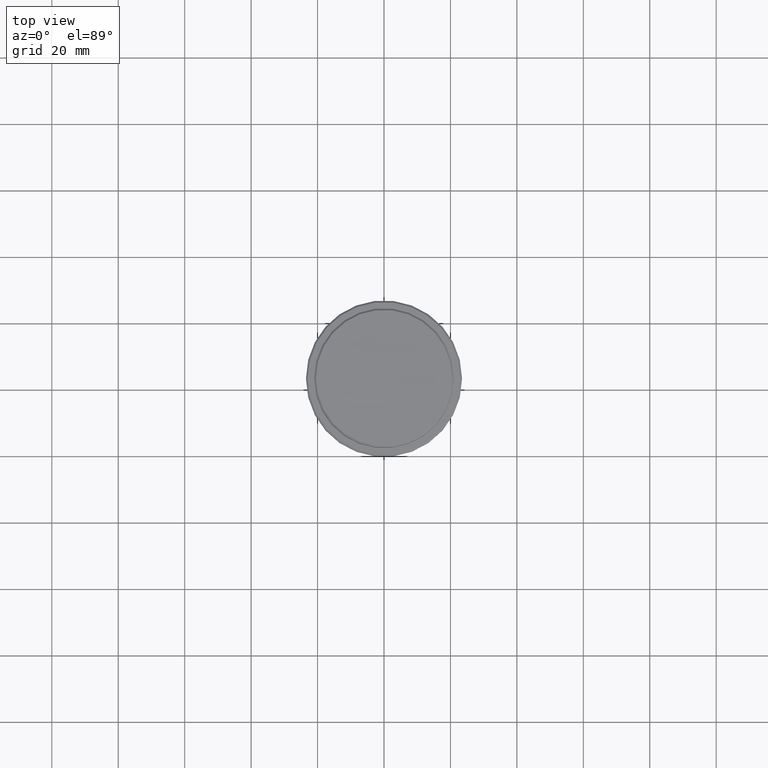
[diagram: clean part render]
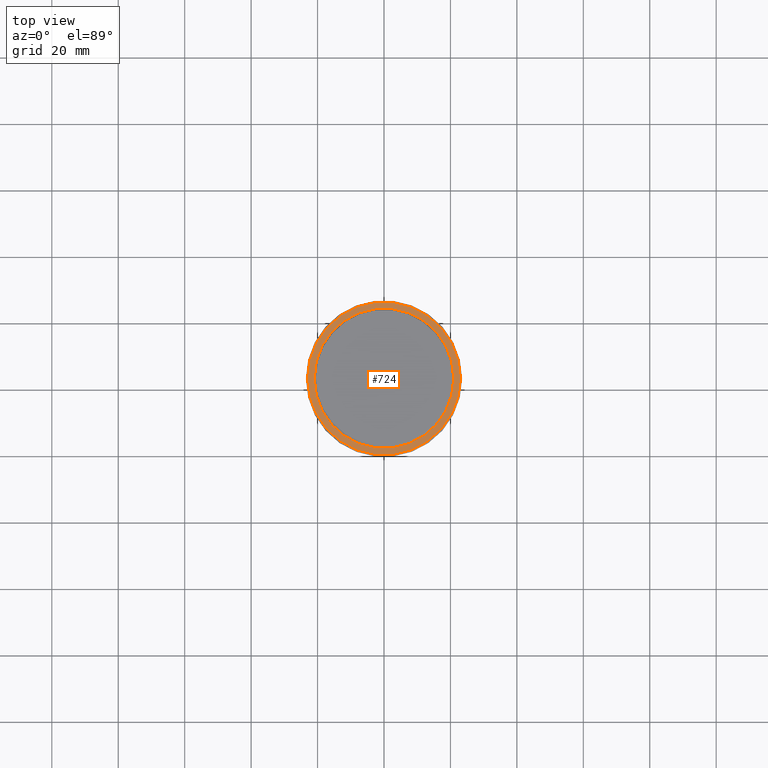
[diagram: same view with one face highlighted and labeled with its STEP entity id]
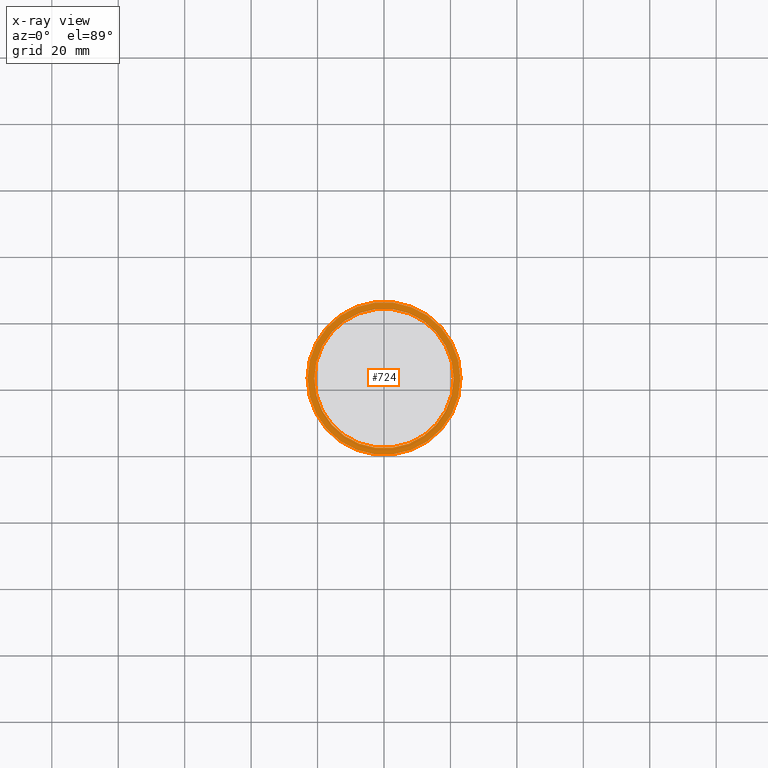
[diagram: x-ray of the same camera — body ghosted, the highlighted face saturated]
A machine part, top view. The second image highlights one B-rep face of the part: STEP entity #724.
The next image is the same camera in x-ray: the body ghosted, the highlighted face saturated — about 0% of this face is hidden behind the body in this view.
In plain terms, the highlighted planar face has unit normal (0, -0, 1).
Its self-contained STEP definition (entity closure, byte-faithful):
#37 = CIRCLE ( 'NONE', #1299, 20.99999999999999289 ) ;
#53 = DIRECTION ( 'NONE',  ( -0.000000000000000000, -0.000000000000000000, 1.000000000000000000 ) ) ;
#92 = CARTESIAN_POINT ( 'NONE',  ( 0.000000000000000000, 0.000000000000000000, -9.000000000000001776 ) ) ;
#108 = CARTESIAN_POINT ( 'NONE',  ( -23.00000000000002487, 0.000000000000000000, -9.000000000000001776 ) ) ;
#143 = EDGE_CURVE ( 'NONE', #965, #233, #37, .T. ) ;
#146 = EDGE_CURVE ( 'NONE', #1329, #208, #509, .T. ) ;
#170 = ORIENTED_EDGE ( 'NONE', *, *, #201, .T. ) ;
#171 = AXIS2_PLACEMENT_3D ( 'NONE', #92, #521, #985 ) ;
#179 = EDGE_CURVE ( 'NONE', #208, #1329, #1166, .T. ) ;
#201 = EDGE_CURVE ( 'NONE', #233, #965, #596, .T. ) ;
#208 = VERTEX_POINT ( 'NONE', #1095 ) ;
#210 = CARTESIAN_POINT ( 'NONE',  ( 0.000000000000000000, 20.49999999999999645, -9.000000000000001776 ) ) ;
#233 = VERTEX_POINT ( 'NONE', #906 ) ;
#329 = AXIS2_PLACEMENT_3D ( 'NONE', #625, #820, #605 ) ;
#360 = CARTESIAN_POINT ( 'NONE',  ( -20.99999999999999289, 2.571758278209440872E-15, -9.000000000000001776 ) ) ;
#431 = FACE_OUTER_BOUND ( 'NONE', #1000, .T. ) ;
#458 = ORIENTED_EDGE ( 'NONE', *, *, #143, .T. ) ;
#509 = CIRCLE ( 'NONE', #1076, 23.00000000000002487 ) ;
#521 = DIRECTION ( 'NONE',  ( 0.000000000000000000, 0.000000000000000000, -1.000000000000000000 ) ) ;
#596 = CIRCLE ( 'NONE', #171, 20.99999999999999289 ) ;
#605 = DIRECTION ( 'NONE',  ( 1.000000000000000000, 0.000000000000000000, 0.000000000000000000 ) ) ;
#611 = DIRECTION ( 'NONE',  ( 0.000000000000000000, 0.000000000000000000, -1.000000000000000000 ) ) ;
#623 = AXIS2_PLACEMENT_3D ( 'NONE', #210, #1087, #662 ) ;
#625 = CARTESIAN_POINT ( 'NONE',  ( 0.000000000000000000, 0.000000000000000000, -9.000000000000001776 ) ) ;
#662 = DIRECTION ( 'NONE',  ( 1.000000000000000000, 0.000000000000000000, 0.000000000000000000 ) ) ;
#724 = ADVANCED_FACE ( 'NONE', ( #431, #1185 ), #1292, .T. ) ;
#817 = DIRECTION ( 'NONE',  ( 1.000000000000000000, 0.000000000000000000, 0.000000000000000000 ) ) ;
#820 = DIRECTION ( 'NONE',  ( -0.000000000000000000, -0.000000000000000000, 1.000000000000000000 ) ) ;
#890 = ORIENTED_EDGE ( 'NONE', *, *, #179, .T. ) ;
#906 = CARTESIAN_POINT ( 'NONE',  ( 20.99999999999999289, 0.000000000000000000, -9.000000000000001776 ) ) ;
#932 = DIRECTION ( 'NONE',  ( 1.000000000000000000, 0.000000000000000000, 0.000000000000000000 ) ) ;
#965 = VERTEX_POINT ( 'NONE', #360 ) ;
#985 = DIRECTION ( 'NONE',  ( 1.000000000000000000, 0.000000000000000000, 0.000000000000000000 ) ) ;
#1000 = EDGE_LOOP ( 'NONE', ( #1404, #890 ) ) ;
#1073 = EDGE_LOOP ( 'NONE', ( #170, #458 ) ) ;
#1076 = AXIS2_PLACEMENT_3D ( 'NONE', #1350, #53, #817 ) ;
#1087 = DIRECTION ( 'NONE',  ( 0.000000000000000000, -0.000000000000000000, 1.000000000000000000 ) ) ;
#1095 = CARTESIAN_POINT ( 'NONE',  ( 23.00000000000002487, 2.847303808017597717E-15, -9.000000000000001776 ) ) ;
#1161 = CARTESIAN_POINT ( 'NONE',  ( 0.000000000000000000, 0.000000000000000000, -9.000000000000001776 ) ) ;
#1166 = CIRCLE ( 'NONE', #329, 23.00000000000002487 ) ;
#1185 = FACE_BOUND ( 'NONE', #1073, .T. ) ;
#1292 = PLANE ( 'NONE',  #623 ) ;
#1299 = AXIS2_PLACEMENT_3D ( 'NONE', #1161, #611, #932 ) ;
#1329 = VERTEX_POINT ( 'NONE', #108 ) ;
#1350 = CARTESIAN_POINT ( 'NONE',  ( 0.000000000000000000, 0.000000000000000000, -9.000000000000001776 ) ) ;
#1404 = ORIENTED_EDGE ( 'NONE', *, *, #146, .T. ) ;